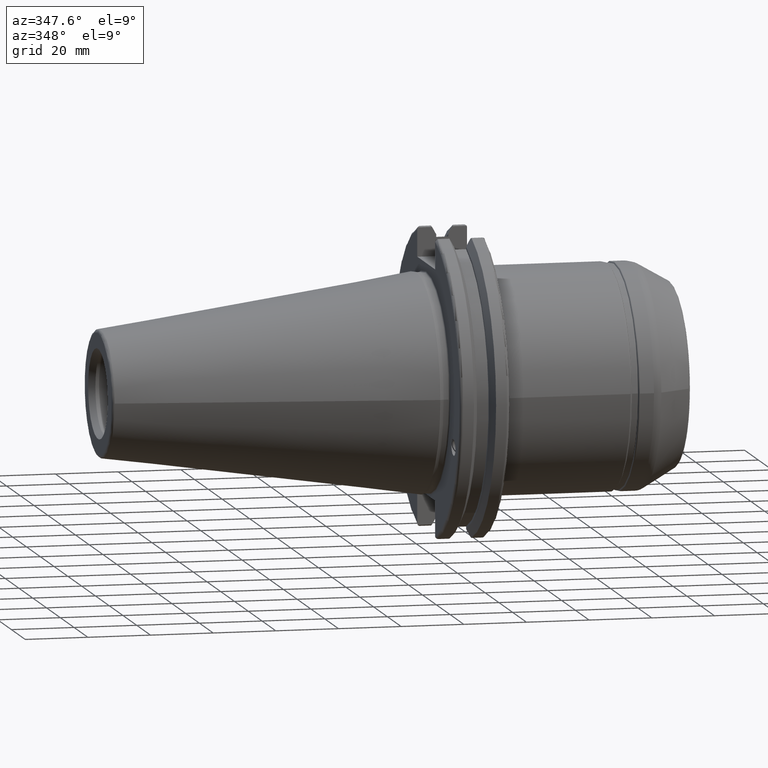
[diagram: clean part render]
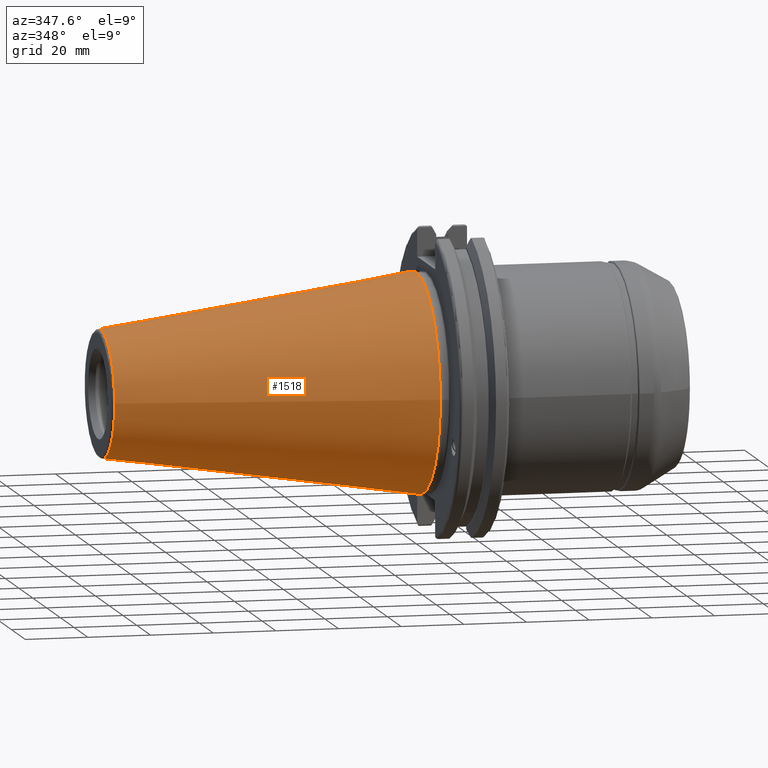
[diagram: same view with one face highlighted and labeled with its STEP entity id]
A machine part, auxiliary view. The second image highlights one B-rep face of the part: STEP entity #1518.
In plain terms, the highlighted conical surface has half-angle 8.297 deg.
Its self-contained STEP definition (entity closure, byte-faithful):
#140=CONICAL_SURFACE('',#1721,27.5166666666666,0.14481249823894);
#208=FACE_OUTER_BOUND('',#310,.T.);
#310=EDGE_LOOP('',(#1299,#1300,#1301,#1302,#1303));
#405=LINE('',#2860,#486);
#486=VECTOR('',#2142,27.5166666666666);
#569=CIRCLE('',#1715,20.233121911427);
#570=CIRCLE('',#1716,20.233121911427);
#574=CIRCLE('',#1722,34.925);
#722=VERTEX_POINT('',#2847);
#723=VERTEX_POINT('',#2848);
#726=VERTEX_POINT('',#2858);
#928=EDGE_CURVE('',#722,#723,#569,.T.);
#929=EDGE_CURVE('',#723,#722,#570,.T.);
#933=EDGE_CURVE('',#726,#726,#574,.T.);
#934=EDGE_CURVE('',#726,#723,#405,.T.);
#1299=ORIENTED_EDGE('',*,*,#933,.F.);
#1300=ORIENTED_EDGE('',*,*,#934,.T.);
#1301=ORIENTED_EDGE('',*,*,#928,.F.);
#1302=ORIENTED_EDGE('',*,*,#929,.F.);
#1303=ORIENTED_EDGE('',*,*,#934,.F.);
#1518=ADVANCED_FACE('',(#208),#140,.T.);
#1715=AXIS2_PLACEMENT_3D('',#2849,#2126,#2127);
#1716=AXIS2_PLACEMENT_3D('',#2850,#2128,#2129);
#1721=AXIS2_PLACEMENT_3D('',#2857,#2138,#2139);
#1722=AXIS2_PLACEMENT_3D('',#2859,#2140,#2141);
#2126=DIRECTION('center_axis',(-1.,0.,0.));
#2127=DIRECTION('ref_axis',(0.,-1.,3.06161699786838E-17));
#2128=DIRECTION('center_axis',(-1.,0.,0.));
#2129=DIRECTION('ref_axis',(0.,-1.,3.06161699786838E-17));
#2138=DIRECTION('center_axis',(1.,0.,0.));
#2139=DIRECTION('ref_axis',(0.,1.,0.));
#2140=DIRECTION('center_axis',(1.,0.,0.));
#2141=DIRECTION('ref_axis',(0.,0.,-1.));
#2142=DIRECTION('',(-0.989532981063281,0.144306893071729,1.76724974695192E-17));
#2847=CARTESIAN_POINT('',(-100.744306893072,-2.47784279855872E-15,20.233121911427));
#2848=CARTESIAN_POINT('',(-100.744306893072,-20.233121911427,-2.47784279855872E-15));
#2849=CARTESIAN_POINT('Origin',(-100.744306893072,0.,-3.09730349819841E-15));
#2850=CARTESIAN_POINT('Origin',(-100.744306893072,0.,-3.09730349819841E-15));
#2857=CARTESIAN_POINT('Origin',(-50.8,0.,0.));
#2858=CARTESIAN_POINT('',(-8.88178419700125E-15,-34.925,-4.27707894602213E-15));
#2859=CARTESIAN_POINT('Origin',(0.,0.,0.));
#2860=CARTESIAN_POINT('',(-50.8,-27.5166666666666,-3.3698197756538E-15));